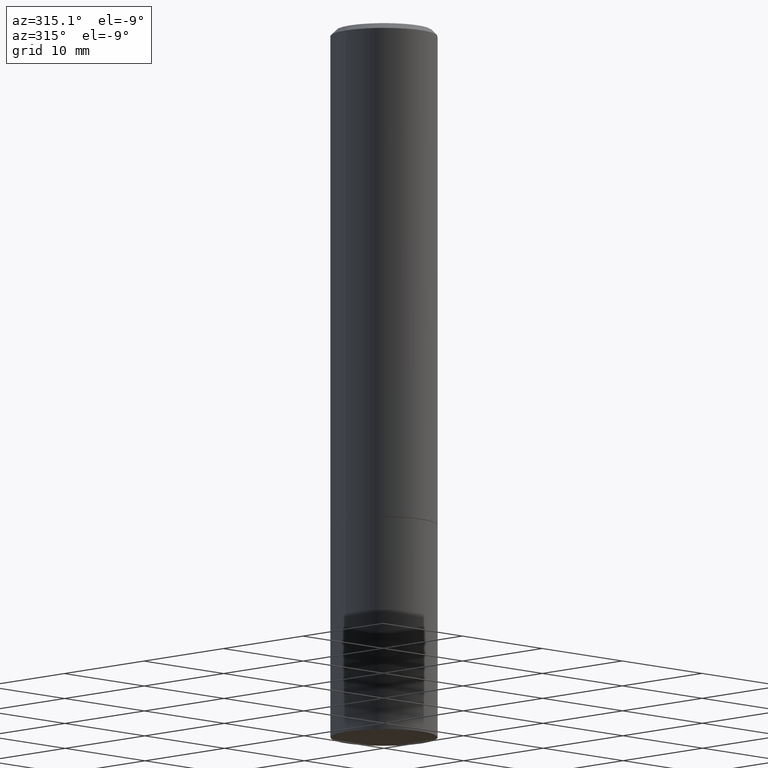
[diagram: clean part render]
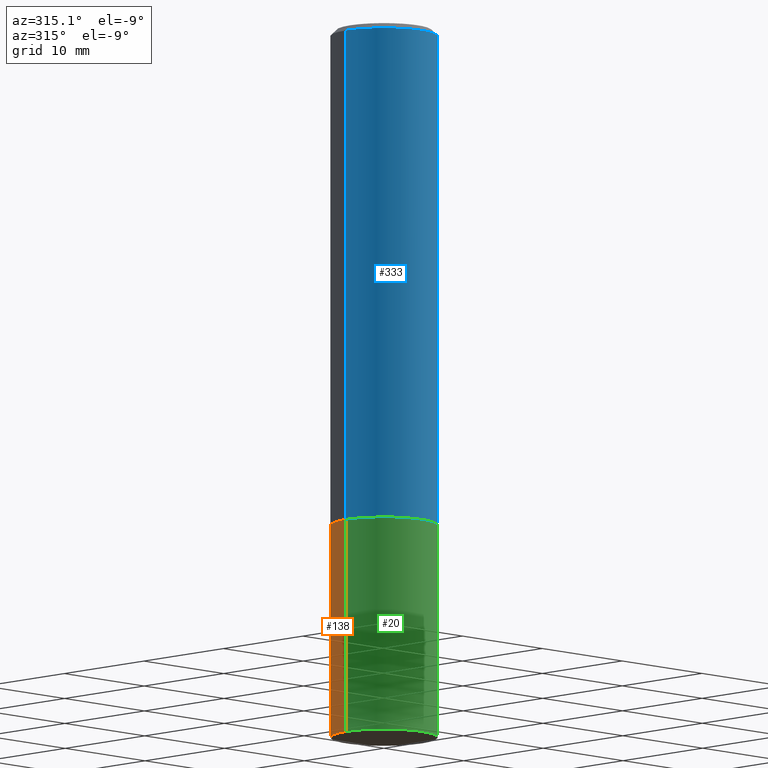
[diagram: same view with three faces highlighted in distinct colors, each labeled with its STEP entity id]
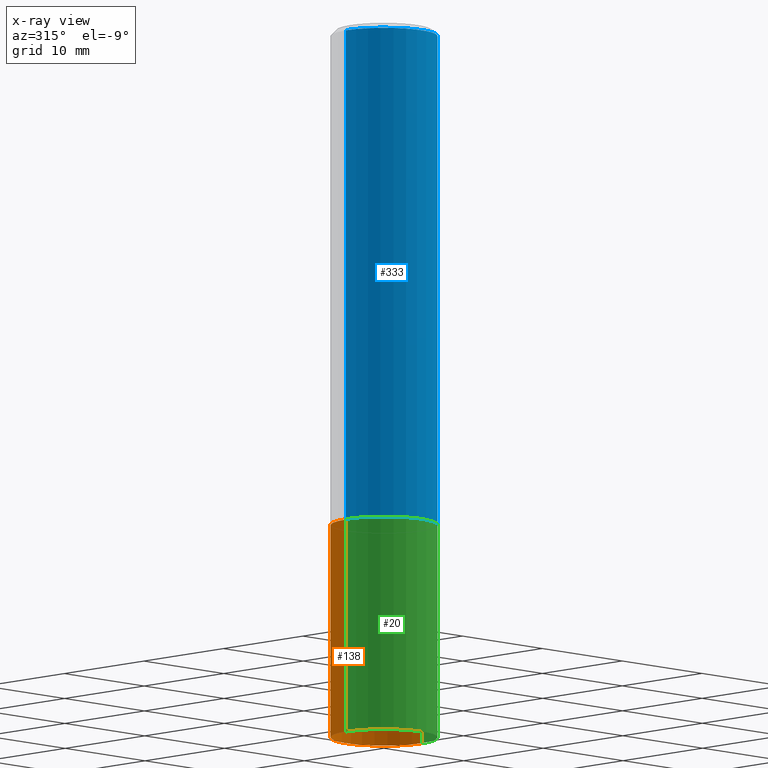
[diagram: x-ray of the same camera — body ghosted, the three highlighted faces saturated]
A machine part, auxiliary view with three faces highlighted in distinct colors.
The next image is the same camera in x-ray (body ghosted, the three faces saturated) — at least one of them is partly hidden behind the body in this view.
Their STEP definitions:

[orange] entity #138 — the highlighted cylindrical surface (partial cylindrical patch) has radius 4.7625 mm, axis along (-0, 0, 1).
#5 = AXIS2_PLACEMENT_3D ( 'NONE', #74, #236, #71 ) ;
#17 = FACE_OUTER_BOUND ( 'NONE', #28, .T. ) ;
#18 = DIRECTION ( 'NONE',  ( 1.000000000000000000, -6.982962677686266711E-15, 0.000000000000000000 ) ) ;
#19 = DIRECTION ( 'NONE',  ( -2.445468806185136597E-29, 3.491481338843145583E-15, 1.000000000000000000 ) ) ;
#26 = CARTESIAN_POINT ( 'NONE',  ( 0.1875000000000000278, -1.003800884917403995E-14, -2.500000000000000000 ) ) ;
#27 = EDGE_CURVE ( 'NONE', #108, #229, #141, .T. ) ;
#28 = EDGE_LOOP ( 'NONE', ( #142, #268, #341, #315 ) ) ;
#30 = VERTEX_POINT ( 'NONE', #139 ) ;
#42 = CIRCLE ( 'NONE', #94, 0.1875000000000000278 ) ;
#71 = DIRECTION ( 'NONE',  ( 1.000000000000000000, -6.982962677686265922E-15, 4.876176775795935793E-29 ) ) ;
#73 = VECTOR ( 'NONE', #318, 39.37007874015748143 ) ;
#74 = CARTESIAN_POINT ( 'NONE',  ( 0.000000000000000000, 0.000000000000000000, 0.000000000000000000 ) ) ;
#94 = AXIS2_PLACEMENT_3D ( 'NONE', #157, #218, #279 ) ;
#104 = AXIS2_PLACEMENT_3D ( 'NONE', #187, #19, #18 ) ;
#108 = VERTEX_POINT ( 'NONE', #26 ) ;
#126 = CARTESIAN_POINT ( 'NONE',  ( -0.1875000000000000278, -6.087130215491496564E-15, -1.750000000000000222 ) ) ;
#138 = ADVANCED_FACE ( 'NONE', ( #17 ), #148, .T. ) ;
#139 = CARTESIAN_POINT ( 'NONE',  ( -0.1875000000000000278, -6.087130215491496564E-15, -2.500000000000000000 ) ) ;
#141 = LINE ( 'NONE', #254, #73 ) ;
#142 = ORIENTED_EDGE ( 'NONE', *, *, #320, .T. ) ;
#148 = CYLINDRICAL_SURFACE ( 'NONE', #5, 0.1875000000000000278 ) ;
#154 = EDGE_CURVE ( 'NONE', #229, #260, #204, .T. ) ;
#157 = CARTESIAN_POINT ( 'NONE',  ( 6.113672015462842613E-29, -8.728703347107864943E-15, -2.500000000000000000 ) ) ;
#187 = CARTESIAN_POINT ( 'NONE',  ( 4.279570410823989044E-29, -6.110092342975505460E-15, -1.750000000000000222 ) ) ;
#199 = EDGE_CURVE ( 'NONE', #30, #260, #355, .T. ) ;
#204 = CIRCLE ( 'NONE', #104, 0.1875000000000000278 ) ;
#214 = DIRECTION ( 'NONE',  ( -2.445468806185136877E-29, 3.491481338843145188E-15, 1.000000000000000000 ) ) ;
#218 = DIRECTION ( 'NONE',  ( -2.445468806185136597E-29, 3.491481338843145583E-15, 1.000000000000000000 ) ) ;
#229 = VERTEX_POINT ( 'NONE', #299 ) ;
#236 = DIRECTION ( 'NONE',  ( -2.445468806185136597E-29, 3.491481338843145583E-15, 1.000000000000000000 ) ) ;
#254 = CARTESIAN_POINT ( 'NONE',  ( 0.1875000000000000278, -1.309305502066175008E-15, 9.142831454617381013E-30 ) ) ;
#260 = VERTEX_POINT ( 'NONE', #126 ) ;
#261 = VECTOR ( 'NONE', #214, 39.37007874015748143 ) ;
#268 = ORIENTED_EDGE ( 'NONE', *, *, #199, .T. ) ;
#279 = DIRECTION ( 'NONE',  ( 1.000000000000000000, -6.982962677686266711E-15, 0.000000000000000000 ) ) ;
#299 = CARTESIAN_POINT ( 'NONE',  ( 0.1875000000000000278, -7.419397845041680468E-15, -1.750000000000000222 ) ) ;
#315 = ORIENTED_EDGE ( 'NONE', *, *, #27, .F. ) ;
#318 = DIRECTION ( 'NONE',  ( -2.445468806185136877E-29, 3.491481338843145188E-15, 1.000000000000000000 ) ) ;
#320 = EDGE_CURVE ( 'NONE', #108, #30, #42, .T. ) ;
#341 = ORIENTED_EDGE ( 'NONE', *, *, #154, .F. ) ;
#355 = LINE ( 'NONE', #357, #261 ) ;
#357 = CARTESIAN_POINT ( 'NONE',  ( -0.1875000000000000278, 1.332267629550188046E-15, -9.223003294227947991E-30 ) ) ;

[blue] entity #333 — the highlighted cylindrical surface (partial cylindrical patch) has radius 4.7625 mm, axis along (-0, 0, 1).
#4 = LINE ( 'NONE', #67, #323 ) ;
#15 = LINE ( 'NONE', #239, #87 ) ;
#33 = ORIENTED_EDGE ( 'NONE', *, *, #295, .T. ) ;
#53 = DIRECTION ( 'NONE',  ( -2.445468806185136597E-29, 3.491481338843145583E-15, 1.000000000000000000 ) ) ;
#55 = CIRCLE ( 'NONE', #145, 0.1875000000000000278 ) ;
#67 = CARTESIAN_POINT ( 'NONE',  ( -0.1874999999999998890, 1.332267629550187060E-15, -9.223003294227942385E-30 ) ) ;
#77 = AXIS2_PLACEMENT_3D ( 'NONE', #217, #304, #365 ) ;
#79 = CARTESIAN_POINT ( 'NONE',  ( 4.277124942017804562E-29, -6.106600861636661664E-15, -1.749000000000000110 ) ) ;
#80 = EDGE_CURVE ( 'NONE', #228, #174, #4, .T. ) ;
#83 = ORIENTED_EDGE ( 'NONE', *, *, #80, .F. ) ;
#87 = VECTOR ( 'NONE', #215, 39.37007874015748143 ) ;
#107 = VERTEX_POINT ( 'NONE', #284 ) ;
#119 = EDGE_LOOP ( 'NONE', ( #83, #33, #136, #285 ) ) ;
#124 = CARTESIAN_POINT ( 'NONE',  ( -0.1874999999999997502, 1.239475875289309935E-15, -0.02000000000000004552 ) ) ;
#136 = ORIENTED_EDGE ( 'NONE', *, *, #221, .T. ) ;
#145 = AXIS2_PLACEMENT_3D ( 'NONE', #79, #53, #162 ) ;
#150 = CARTESIAN_POINT ( 'NONE',  ( -0.1875000000000000278, -1.755947614656572266E-15, -1.749000000000000110 ) ) ;
#162 = DIRECTION ( 'NONE',  ( 1.000000000000000000, -6.982962677686266711E-15, 0.000000000000000000 ) ) ;
#170 = DIRECTION ( 'NONE',  ( -2.445468806185136877E-29, 3.491481338843145188E-15, 1.000000000000000000 ) ) ;
#174 = VERTEX_POINT ( 'NONE', #124 ) ;
#196 = CARTESIAN_POINT ( 'NONE',  ( 0.1874999999999997502, -1.356173001359023494E-15, -0.02000000000000004552 ) ) ;
#215 = DIRECTION ( 'NONE',  ( -2.445468806185136877E-29, 3.491481338843145188E-15, 1.000000000000000000 ) ) ;
#217 = CARTESIAN_POINT ( 'NONE',  ( 0.000000000000000000, 0.000000000000000000, 0.000000000000000000 ) ) ;
#221 = EDGE_CURVE ( 'NONE', #107, #347, #15, .T. ) ;
#228 = VERTEX_POINT ( 'NONE', #150 ) ;
#239 = CARTESIAN_POINT ( 'NONE',  ( 0.1874999999999998890, -1.309305502066174022E-15, 9.142831454617374006E-30 ) ) ;
#249 = DIRECTION ( 'NONE',  ( -2.445468806185136597E-29, 3.491481338843145583E-15, 1.000000000000000000 ) ) ;
#255 = AXIS2_PLACEMENT_3D ( 'NONE', #275, #249, #366 ) ;
#273 = FACE_OUTER_BOUND ( 'NONE', #119, .T. ) ;
#275 = CARTESIAN_POINT ( 'NONE',  ( 4.890937612370284544E-31, -6.982962677686307633E-17, -0.02000000000000004552 ) ) ;
#284 = CARTESIAN_POINT ( 'NONE',  ( 0.1875000000000000278, -7.415906363702837461E-15, -1.749000000000000110 ) ) ;
#285 = ORIENTED_EDGE ( 'NONE', *, *, #308, .F. ) ;
#295 = EDGE_CURVE ( 'NONE', #228, #107, #55, .T. ) ;
#304 = DIRECTION ( 'NONE',  ( -2.445468806185136597E-29, 3.491481338843145583E-15, 1.000000000000000000 ) ) ;
#308 = EDGE_CURVE ( 'NONE', #174, #347, #361, .T. ) ;
#323 = VECTOR ( 'NONE', #170, 39.37007874015748143 ) ;
#333 = ADVANCED_FACE ( 'NONE', ( #273 ), #335, .T. ) ;
#335 = CYLINDRICAL_SURFACE ( 'NONE', #77, 0.1874999999999998890 ) ;
#347 = VERTEX_POINT ( 'NONE', #196 ) ;
#361 = CIRCLE ( 'NONE', #255, 0.1874999999999997502 ) ;
#365 = DIRECTION ( 'NONE',  ( 1.000000000000000000, -6.982962677686265922E-15, 4.876176775795935793E-29 ) ) ;
#366 = DIRECTION ( 'NONE',  ( 1.000000000000000000, -6.982962677686265133E-15, 0.000000000000000000 ) ) ;

[green] entity #20 — the highlighted cylindrical surface (partial cylindrical patch) has radius 4.7625 mm, axis along (-0, 0, 1).
#3 = EDGE_LOOP ( 'NONE', ( #171, #86, #259, #351 ) ) ;
#10 = DIRECTION ( 'NONE',  ( -2.445468806185136597E-29, 3.491481338843145583E-15, 1.000000000000000000 ) ) ;
#20 = ADVANCED_FACE ( 'NONE', ( #209 ), #200, .T. ) ;
#22 = AXIS2_PLACEMENT_3D ( 'NONE', #36, #167, #346 ) ;
#26 = CARTESIAN_POINT ( 'NONE',  ( 0.1875000000000000278, -1.003800884917403995E-14, -2.500000000000000000 ) ) ;
#27 = EDGE_CURVE ( 'NONE', #108, #229, #141, .T. ) ;
#30 = VERTEX_POINT ( 'NONE', #139 ) ;
#36 = CARTESIAN_POINT ( 'NONE',  ( 0.000000000000000000, 0.000000000000000000, 0.000000000000000000 ) ) ;
#72 = EDGE_CURVE ( 'NONE', #30, #108, #277, .T. ) ;
#73 = VECTOR ( 'NONE', #318, 39.37007874015748143 ) ;
#86 = ORIENTED_EDGE ( 'NONE', *, *, #72, .T. ) ;
#108 = VERTEX_POINT ( 'NONE', #26 ) ;
#109 = AXIS2_PLACEMENT_3D ( 'NONE', #306, #10, #115 ) ;
#115 = DIRECTION ( 'NONE',  ( 1.000000000000000000, -6.982962677686266711E-15, 0.000000000000000000 ) ) ;
#126 = CARTESIAN_POINT ( 'NONE',  ( -0.1875000000000000278, -6.087130215491496564E-15, -1.750000000000000222 ) ) ;
#139 = CARTESIAN_POINT ( 'NONE',  ( -0.1875000000000000278, -6.087130215491496564E-15, -2.500000000000000000 ) ) ;
#141 = LINE ( 'NONE', #254, #73 ) ;
#167 = DIRECTION ( 'NONE',  ( -2.445468806185136597E-29, 3.491481338843145583E-15, 1.000000000000000000 ) ) ;
#171 = ORIENTED_EDGE ( 'NONE', *, *, #199, .F. ) ;
#176 = EDGE_CURVE ( 'NONE', #260, #229, #233, .T. ) ;
#181 = CARTESIAN_POINT ( 'NONE',  ( 4.279570410823989044E-29, -6.110092342975505460E-15, -1.750000000000000222 ) ) ;
#190 = AXIS2_PLACEMENT_3D ( 'NONE', #181, #271, #358 ) ;
#199 = EDGE_CURVE ( 'NONE', #30, #260, #355, .T. ) ;
#200 = CYLINDRICAL_SURFACE ( 'NONE', #22, 0.1875000000000000278 ) ;
#209 = FACE_OUTER_BOUND ( 'NONE', #3, .T. ) ;
#214 = DIRECTION ( 'NONE',  ( -2.445468806185136877E-29, 3.491481338843145188E-15, 1.000000000000000000 ) ) ;
#229 = VERTEX_POINT ( 'NONE', #299 ) ;
#233 = CIRCLE ( 'NONE', #190, 0.1875000000000000278 ) ;
#254 = CARTESIAN_POINT ( 'NONE',  ( 0.1875000000000000278, -1.309305502066175008E-15, 9.142831454617381013E-30 ) ) ;
#259 = ORIENTED_EDGE ( 'NONE', *, *, #27, .T. ) ;
#260 = VERTEX_POINT ( 'NONE', #126 ) ;
#261 = VECTOR ( 'NONE', #214, 39.37007874015748143 ) ;
#271 = DIRECTION ( 'NONE',  ( -2.445468806185136597E-29, 3.491481338843145583E-15, 1.000000000000000000 ) ) ;
#277 = CIRCLE ( 'NONE', #109, 0.1875000000000000278 ) ;
#299 = CARTESIAN_POINT ( 'NONE',  ( 0.1875000000000000278, -7.419397845041680468E-15, -1.750000000000000222 ) ) ;
#306 = CARTESIAN_POINT ( 'NONE',  ( 6.113672015462842613E-29, -8.728703347107864943E-15, -2.500000000000000000 ) ) ;
#318 = DIRECTION ( 'NONE',  ( -2.445468806185136877E-29, 3.491481338843145188E-15, 1.000000000000000000 ) ) ;
#346 = DIRECTION ( 'NONE',  ( 1.000000000000000000, -6.982962677686265922E-15, 4.876176775795935793E-29 ) ) ;
#351 = ORIENTED_EDGE ( 'NONE', *, *, #176, .F. ) ;
#355 = LINE ( 'NONE', #357, #261 ) ;
#357 = CARTESIAN_POINT ( 'NONE',  ( -0.1875000000000000278, 1.332267629550188046E-15, -9.223003294227947991E-30 ) ) ;
#358 = DIRECTION ( 'NONE',  ( 1.000000000000000000, -6.982962677686266711E-15, 0.000000000000000000 ) ) ;